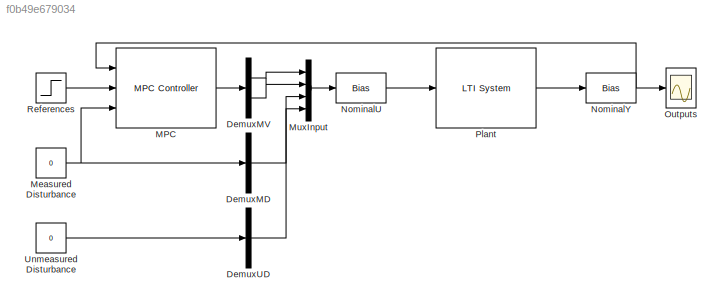
MODEL slx_f0b49e679034
KIND model
CONFIG AbsTol = auto
CONFIG EnableMultiTasking = off
CONFIG FixedStep = auto
CONFIG MaxStep = auto
CONFIG MinStep = auto
CONFIG RelTol = 1e-3
CONFIG SampleTimeConstraint = Unconstrained
CONFIG SolverName = VariableStepAuto
CONFIG StartTime = 0.0
CONFIG StopTime = 10.0
BLOCK [Demux] DemuxMD
  Outputs = 1
  Ports = [1, 1]
BLOCK [Demux] DemuxMV
  Outputs = 2
  Ports = [1, 2]
BLOCK [Demux] DemuxUD
  Outputs = 1
  Ports = [1, 1]
BLOCK [Reference] MPC  REF=mpclib/MPC Controller  (lib defined in mdl_ae329e0e0455)
  Ports = [3, 1]
  SCDEnableBlockLinearizationSpecification = on
  SourceBlock = mpclib/MPC Controller
  SourceProductBaseCode = MP
  SourceType = MPC
BLOCK [Constant] Measured Disturbance
  Value = 0
BLOCK [Mux] MuxInput
  DisplayOption = bar
  Ports = [4, 1]
BLOCK [Bias] NominalU
  Bias = [0;0;0;0]
BLOCK [Bias] NominalY
  Bias = [0;0;0]
BLOCK [Scope] Outputs
  Floating = off
  NumInputPorts = 1
  Ports = [1]
BLOCK [Reference] Plant  REF=cstblocks/LTI System
  Ports = [1, 1]
  SourceBlock = cstblocks/LTI System
  SourceProductBaseCode = CT
  SourceType = LTI Block
BLOCK [Step] References
  After = [1;1;1]
  Before = [0;0;0]
BLOCK [Constant] Unmeasured Disturbance
  Value = 0
LINE DemuxMD:1 -> MuxInput:3
LINE DemuxMV:1 -> MuxInput:1
LINE DemuxMV:2 -> MuxInput:2
LINE DemuxUD:1 -> MuxInput:4
LINE MPC:1 -> DemuxMV:1
NET Measured Disturbance:1 -> DemuxMD:1, MPC:3
LINE MuxInput:1 -> NominalU:1
LINE NominalU:1 -> Plant:1
NET NominalY:1 -> MPC:1, Outputs:1
LINE Plant:1 -> NominalY:1
LINE References:1 -> MPC:2
LINE Unmeasured Disturbance:1 -> DemuxUD:1
note: NET lines group one-source signal fan-out (src -> all destinations, sorted); 1:1 wires keep LINE
